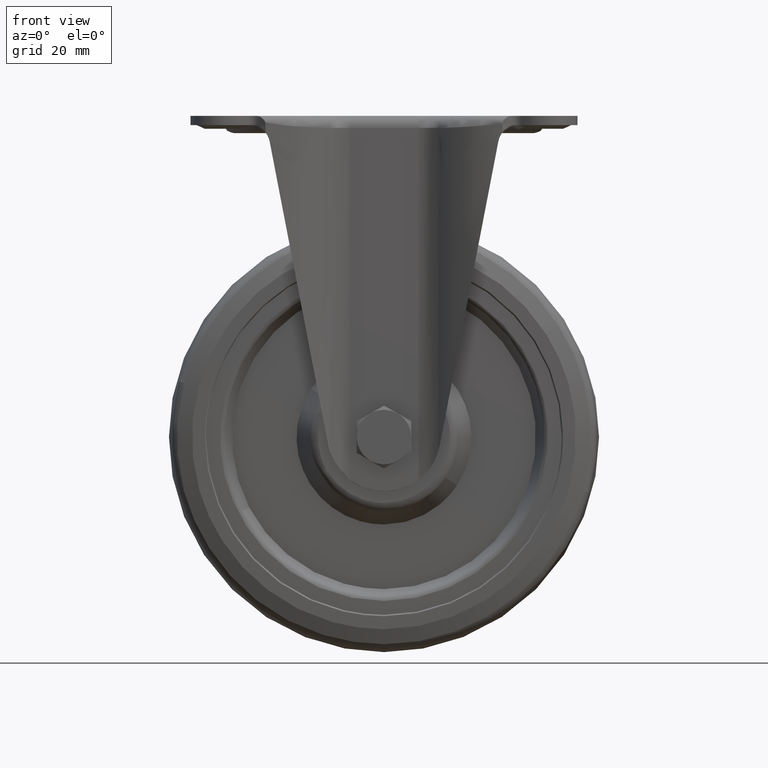
[diagram: clean part render]
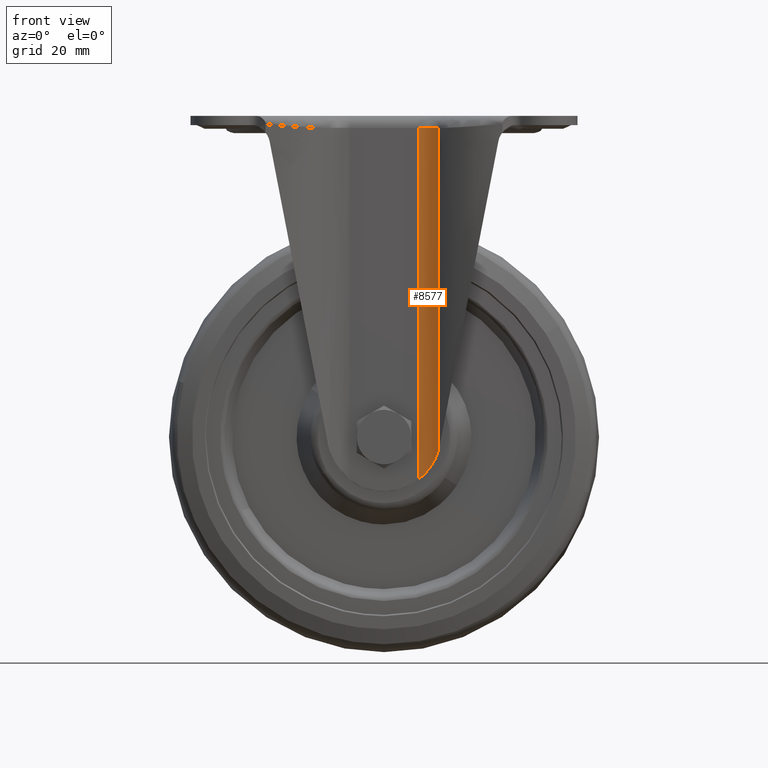
[diagram: same view with one face highlighted and labeled with its STEP entity id]
A machine part, front view. The second image highlights one B-rep face of the part: STEP entity #8577.
In plain terms, the highlighted face is a freeform B-spline surface patch.
Its self-contained STEP definition (entity closure, byte-faithful):
#7111=CARTESIAN_POINT('',(18.914967121290498,-31.823453018504100,-4.200000000000000));
#7112=VERTEX_POINT('',#7111);
#7219=CARTESIAN_POINT('',(11.998857443558160,-28.850000999952350,-4.200000000000000));
#7220=VERTEX_POINT('',#7219);
#7234=CARTESIAN_POINT('',(18.914967121290498,-31.823453018504100,-4.200000000000000));
#7235=CARTESIAN_POINT('',(16.096102253619353,-28.850001170670904,-4.200000000000000));
#7236=CARTESIAN_POINT('',(11.998857443558160,-28.850000999952361,-4.200000000000000));
#7244=(BOUNDED_CURVE()B_SPLINE_CURVE(2,(#7234,#7235,#7236),.UNSPECIFIED.,.F.,.U.)CURVE()GEOMETRIC_REPRESENTATION_ITEM()QUASI_UNIFORM_CURVE()RATIONAL_B_SPLINE_CURVE((1.0,0.918692106901594,1.0))REPRESENTATION_ITEM(''));
#7245=EDGE_CURVE('',#7112,#7220,#7244,.T.);
#8518=CARTESIAN_POINT('',(11.671046118381280,-28.855640654216661,-129.918759260613000));
#8519=CARTESIAN_POINT('',(11.671046118381280,-28.855640654216661,-1.057031018484679));
#8520=CARTESIAN_POINT('',(16.189681094580347,-28.700117566944247,-129.918759260613000));
#8521=CARTESIAN_POINT('',(16.189681094580347,-28.700117566944247,-1.057031018484679));
#8522=CARTESIAN_POINT('',(19.168365581970601,-32.101542004350563,-129.918759260612940));
#8523=CARTESIAN_POINT('',(19.168365581970601,-32.101542004350563,-1.057031018484679));
#8531=(BOUNDED_SURFACE()B_SPLINE_SURFACE(1,2,((#8518,#8520,#8522),(#8519,#8521,#8523)),.UNSPECIFIED.,.F.,.F.,.U.)B_SPLINE_SURFACE_WITH_KNOTS((2,2),(3,3),(0.0,128.861728242128290),(0.0,8.584038565011358),.UNSPECIFIED.)GEOMETRIC_REPRESENTATION_ITEM()RATIONAL_B_SPLINE_SURFACE(((1.0,0.899512527278173,0.991242649728062),(1.0,0.899512527278173,0.991242649728062)))REPRESENTATION_ITEM('')SURFACE());
#8532=CARTESIAN_POINT('',(18.914967121290498,-31.823453018504100,-116.977008132170400));
#8533=VERTEX_POINT('',#8532);
#8534=CARTESIAN_POINT('',(18.914967121290498,-31.823453018504100,-116.977008132170400));
#8535=CARTESIAN_POINT('',(18.914967121290498,-31.823453018504100,-4.200000000000000));
#8536=QUASI_UNIFORM_CURVE('',1,(#8534,#8535),.UNSPECIFIED.,.F.,.U.);
#8537=EDGE_CURVE('',#8533,#7112,#8536,.T.);
#8538=ORIENTED_EDGE('',*,*,#8537,.T.);
#8539=ORIENTED_EDGE('',*,*,#7245,.T.);
#8540=CARTESIAN_POINT('',(11.998857443558160,-28.850000999952350,-126.852448059134600));
#8541=VERTEX_POINT('',#8540);
#8542=CARTESIAN_POINT('',(11.998857443558160,-28.850000999952350,-126.852448059134600));
#8543=CARTESIAN_POINT('',(11.998857443558160,-28.850000999952350,-4.200000000000000));
#8544=QUASI_UNIFORM_CURVE('',1,(#8542,#8543),.UNSPECIFIED.,.F.,.U.);
#8545=EDGE_CURVE('',#8541,#7220,#8544,.T.);
#8546=ORIENTED_EDGE('',*,*,#8545,.F.);
#8547=CARTESIAN_POINT('',(11.998857443558190,-28.850000999952361,-126.852448059134700));
#8548=CARTESIAN_POINT('',(12.209415676100480,-28.850001008725631,-126.692167527392500));
#8549=CARTESIAN_POINT('',(12.416945719639729,-28.856971627270660,-126.527530984319900));
#8550=CARTESIAN_POINT('',(12.723648567623300,-28.877050200660172,-126.274005786484910));
#8551=CARTESIAN_POINT('',(12.825117283740800,-28.885348246491692,-126.188402004052800));
#8552=CARTESIAN_POINT('',(13.026512794053190,-28.905030786122950,-126.014993716984410));
#8553=CARTESIAN_POINT('',(13.126498380609551,-28.916427959118518,-125.927130804933200));
#8554=CARTESIAN_POINT('',(13.619599149540059,-28.980408994035969,-125.484977059908300));
#8555=CARTESIAN_POINT('',(13.994697455566500,-29.054037997811871,-125.120170260722900));
#8556=CARTESIAN_POINT('',(14.709590646283830,-29.236211402267891,-124.368764848290700));
#8557=CARTESIAN_POINT('',(15.049368926471560,-29.344810241687799,-123.982166205152500));
#8558=CARTESIAN_POINT('',(15.695688461487180,-29.589453107061502,-123.186993882352990));
#8559=CARTESIAN_POINT('',(16.002221927044069,-29.725532713120352,-122.778422888298190));
#8560=CARTESIAN_POINT('',(16.365289421452609,-29.908768265239640,-122.253489910802600));
#8561=CARTESIAN_POINT('',(16.436953291987859,-29.946106071614540,-122.147700605778790));
#8562=CARTESIAN_POINT('',(16.577717218492381,-30.021692470603210,-121.935533003469900));
#8563=CARTESIAN_POINT('',(16.785193279740149,-30.136522195753528,-121.616152413006300));
#8564=CARTESIAN_POINT('',(16.981922202901281,-30.255196795562810,-121.293322649285400));
#8565=CARTESIAN_POINT('',(17.361619393386761,-30.496371958579712,-120.642858218715500));
#8566=CARTESIAN_POINT('',(17.596439398305030,-30.662270298813940,-120.202829703722900));
#8567=CARTESIAN_POINT('',(18.031517165924331,-30.997365478404600,-119.308468899886410));
#8568=CARTESIAN_POINT('',(18.231771718799830,-31.166595125599130,-118.854146794974400));
#8569=CARTESIAN_POINT('',(18.598644315096600,-31.500665448492772,-117.928890251008400));
#8570=CARTESIAN_POINT('',(18.765267269726809,-31.665543604201400,-117.457971286275100));
#8571=CARTESIAN_POINT('',(18.914967121290509,-31.823453018504129,-116.977008132170400));
#8572=B_SPLINE_CURVE_WITH_KNOTS('',3,(#8547,#8548,#8549,#8550,#8551,#8552,#8553,#8554,#8555,#8556,#8557,#8558,#8559,#8560,#8561,#8562,#8563,#8564,#8565,#8566,#8567,#8568,#8569,#8570,#8571),.UNSPECIFIED.,.F.,.U.,(4,2,2,2,2,2,2,2,1,2,2,2,4),(0.0,0.062499999999997,0.093749999999995,0.124999999999994,0.249999999999996,0.375000000000001,0.500000000000006,0.531250000000006,0.562500000000006,0.625000000000006,0.750000000000004,0.875000000000002,1.0),.UNSPECIFIED.);
#8573=EDGE_CURVE('',#8541,#8533,#8572,.T.);
#8574=ORIENTED_EDGE('',*,*,#8573,.T.);
#8575=EDGE_LOOP('',(#8538,#8539,#8546,#8574));
#8576=FACE_OUTER_BOUND('',#8575,.T.);
#8577=ADVANCED_FACE('',(#8576),#8531,.F.);